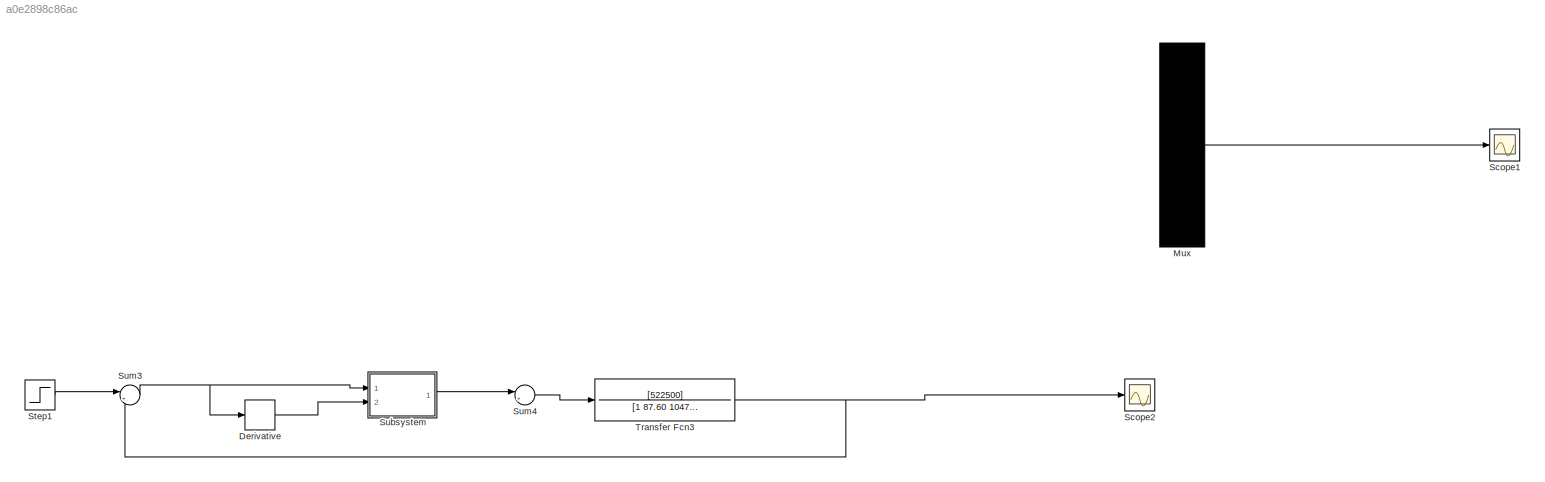
MODEL slx_a0e2898c86ac
KIND model
BLOCK [Derivative] Derivative
BLOCK [Mux] Mux
  DisplayOption = bar
  Inputs = 2
  Ports = [2, 1]
BLOCK [Scope] Scope1
  Floating = off
  NumInputPorts = 1
  Ports = [1]
  SaveName = ScopeData1
  ShowLegends = off
  YMax = 1
  YMin = -1
BLOCK [Scope] Scope2
  Floating = off
  NumInputPorts = 1
  Ports = [1]
  ShowLegends = off
  YMax = 1
  YMin = -1
BLOCK [Step] Step1
  After = 50
  SampleTime = 0
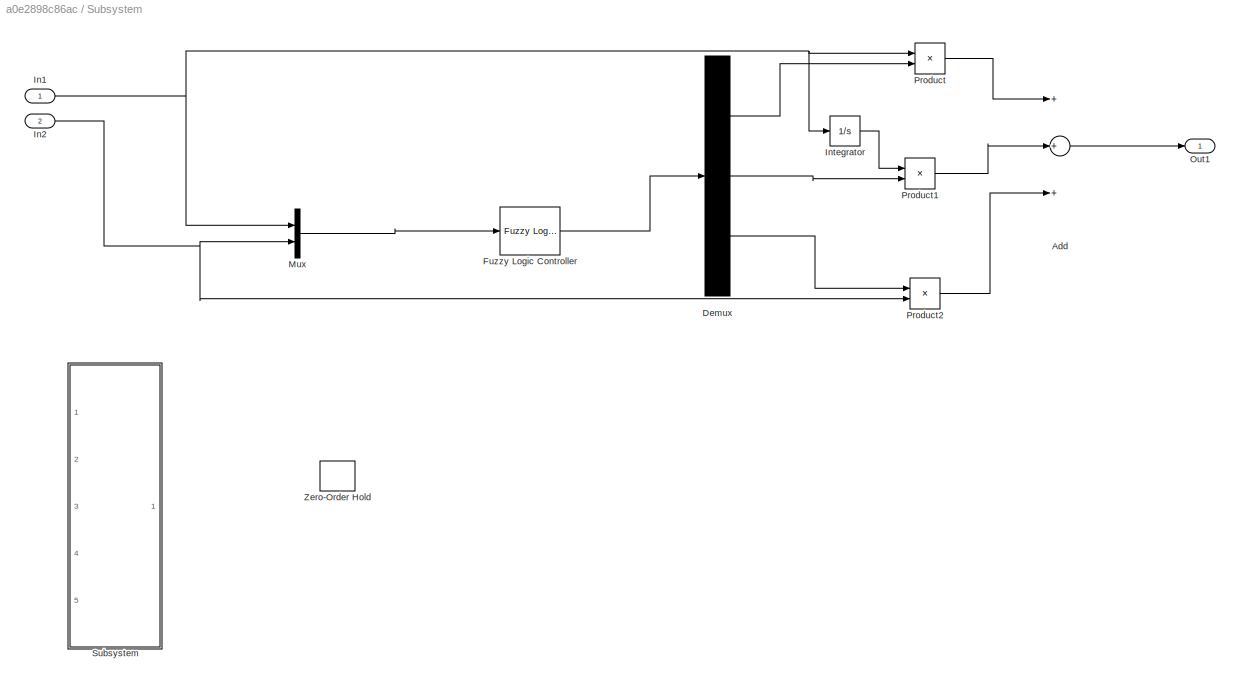
BLOCK [SubSystem] Subsystem
  Ports = [2, 1]
  RequestExecContextInheritance = off
BLOCK [Sum] Subsystem/Add
  InputSameDT = off
  Inputs = +++
  OutDataTypeStr = Inherit: Inherit via internal rule
  Ports = [3, 1]
  SaturateOnIntegerOverflow = off
BLOCK [Demux] Subsystem/Demux
  DisplayOption = bar
  Outputs = 3
  Ports = [1, 3]
BLOCK [Reference] Subsystem/Fuzzy Logic Controller  REF=fuzblock/Fuzzy Logic   (lib defined in mdl_858b3b3e7478)
Controller
  Ports = [1, 1]
  SourceBlock = fuzblock/Fuzzy Logic \nController
  SourceType = FIS
  fis = fuzzy_y
BLOCK [Inport] Subsystem/In1
  IconDisplay = Port number
BLOCK [Inport] Subsystem/In2
  IconDisplay = Port number
  Port = 2
BLOCK [Integrator] Subsystem/Integrator
  Ports = [1, 1]
BLOCK [Mux] Subsystem/Mux
  DisplayOption = bar
  Inputs = 2
  Ports = [2, 1]
BLOCK [Outport] Subsystem/Out1
  IconDisplay = Port number
BLOCK [Product] Subsystem/Product
  InputSameDT = off
  OutDataTypeStr = Inherit: Inherit via internal rule
  Ports = [2, 1]
  RndMeth = Floor
  SaturateOnIntegerOverflow = off
BLOCK [Product] Subsystem/Product1
  InputSameDT = off
  OutDataTypeStr = Inherit: Inherit via internal rule
  Ports = [2, 1]
  RndMeth = Floor
  SaturateOnIntegerOverflow = off
BLOCK [Product] Subsystem/Product2
  InputSameDT = off
  OutDataTypeStr = Inherit: Inherit via internal rule
  Ports = [2, 1]
  RndMeth = Floor
  SaturateOnIntegerOverflow = off
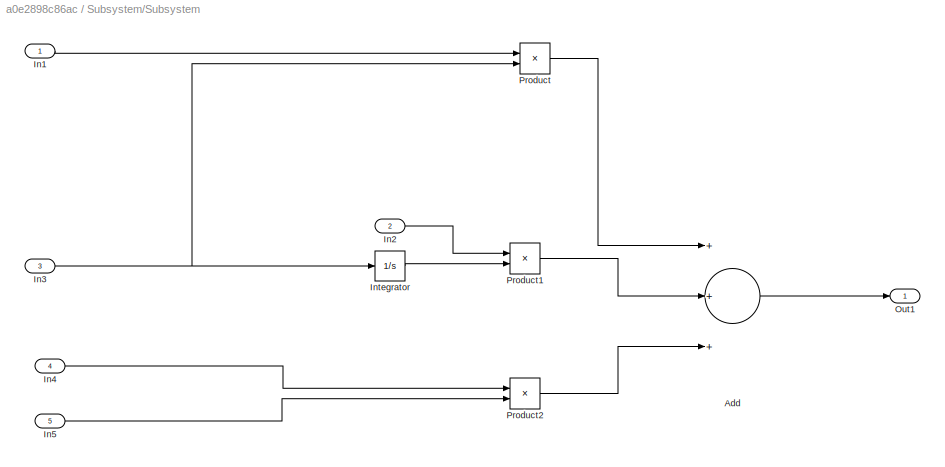
BLOCK [SubSystem] Subsystem/Subsystem
  Ports = [5, 1]
  RequestExecContextInheritance = off
BLOCK [Sum] Subsystem/Subsystem/Add
  InputSameDT = off
  Inputs = +++
  OutDataTypeStr = Inherit: Inherit via internal rule
  Ports = [3, 1]
  SaturateOnIntegerOverflow = off
BLOCK [Inport] Subsystem/Subsystem/In1
  IconDisplay = Port number
BLOCK [Inport] Subsystem/Subsystem/In2
  IconDisplay = Port number
  Port = 2
BLOCK [Inport] Subsystem/Subsystem/In3
  IconDisplay = Port number
  Port = 3
BLOCK [Inport] Subsystem/Subsystem/In4
  IconDisplay = Port number
  Port = 4
BLOCK [Inport] Subsystem/Subsystem/In5
  IconDisplay = Port number
  Port = 5
BLOCK [Integrator] Subsystem/Subsystem/Integrator
  Ports = [1, 1]
BLOCK [Outport] Subsystem/Subsystem/Out1
  IconDisplay = Port number
BLOCK [Product] Subsystem/Subsystem/Product
  InputSameDT = off
  OutDataTypeStr = Inherit: Inherit via internal rule
  Ports = [2, 1]
  RndMeth = Floor
  SaturateOnIntegerOverflow = off
BLOCK [Product] Subsystem/Subsystem/Product1
  InputSameDT = off
  OutDataTypeStr = Inherit: Inherit via internal rule
  Ports = [2, 1]
  RndMeth = Floor
  SaturateOnIntegerOverflow = off
BLOCK [Product] Subsystem/Subsystem/Product2
  InputSameDT = off
  OutDataTypeStr = Inherit: Inherit via internal rule
  Ports = [2, 1]
  RndMeth = Floor
  SaturateOnIntegerOverflow = off
BLOCK [ZeroOrderHold] Subsystem/Zero-Order Hold
BLOCK [Sum] Sum3
  IconShape = round
  InputSameDT = off
  Inputs = |+-
  OutDataTypeStr = Inherit: Inherit via internal rule
  Ports = [2, 1]
  SaturateOnIntegerOverflow = off
BLOCK [Sum] Sum4
  IconShape = round
  InputSameDT = off
  Inputs = |+-
  OutDataTypeStr = Inherit: Inherit via internal rule
  Ports = [2, 1]
  SaturateOnIntegerOverflow = off
BLOCK [TransferFcn] Transfer Fcn3
  Denominator = [1 87.60 10470 1]
  Numerator = [522500]
LINE Derivative:1 -> Subsystem:2
LINE Mux:1 -> Scope1:1
LINE Step1:1 -> Sum3:1
LINE Subsystem/Add:1 -> Subsystem/Out1:1
LINE Subsystem/Demux:1 -> Subsystem/Product:2
LINE Subsystem/Demux:2 -> Subsystem/Product1:2
LINE Subsystem/Demux:3 -> Subsystem/Product2:1
LINE Subsystem/Fuzzy Logic Controller:1 -> Subsystem/Demux:1
NET Subsystem/In1:1 -> Subsystem/Integrator:1, Subsystem/Mux:1, Subsystem/Product:1
NET Subsystem/In2:1 -> Subsystem/Mux:2, Subsystem/Product2:2
LINE Subsystem/Integrator:1 -> Subsystem/Product1:1
LINE Subsystem/Mux:1 -> Subsystem/Fuzzy Logic Controller:1
LINE Subsystem/Product1:1 -> Subsystem/Add:2
LINE Subsystem/Product2:1 -> Subsystem/Add:3
LINE Subsystem/Product:1 -> Subsystem/Add:1
LINE Subsystem/Subsystem/Add:1 -> Subsystem/Subsystem/Out1:1
LINE Subsystem/Subsystem/In1:1 -> Subsystem/Subsystem/Product:1
LINE Subsystem/Subsystem/In2:1 -> Subsystem/Subsystem/Product1:1
NET Subsystem/Subsystem/In3:1 -> Subsystem/Subsystem/Integrator:1, Subsystem/Subsystem/Product:2
LINE Subsystem/Subsystem/In4:1 -> Subsystem/Subsystem/Product2:1
LINE Subsystem/Subsystem/In5:1 -> Subsystem/Subsystem/Product2:2
LINE Subsystem/Subsystem/Integrator:1 -> Subsystem/Subsystem/Product1:2
LINE Subsystem/Subsystem/Product1:1 -> Subsystem/Subsystem/Add:2
LINE Subsystem/Subsystem/Product2:1 -> Subsystem/Subsystem/Add:3
LINE Subsystem/Subsystem/Product:1 -> Subsystem/Subsystem/Add:1
LINE Subsystem:1 -> Sum4:1
NET Sum3:1 -> Derivative:1, Subsystem:1
LINE Sum4:1 -> Transfer Fcn3:1
NET Transfer Fcn3:1 -> Scope2:1, Sum3:2
note: NET lines group one-source signal fan-out (src -> all destinations, sorted); 1:1 wires keep LINE
